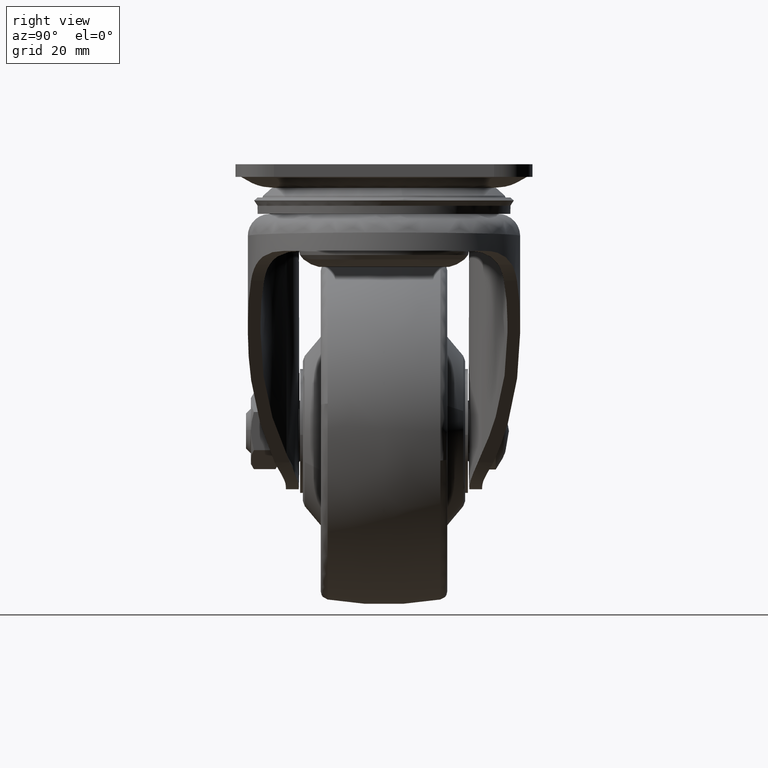
[diagram: clean part render]
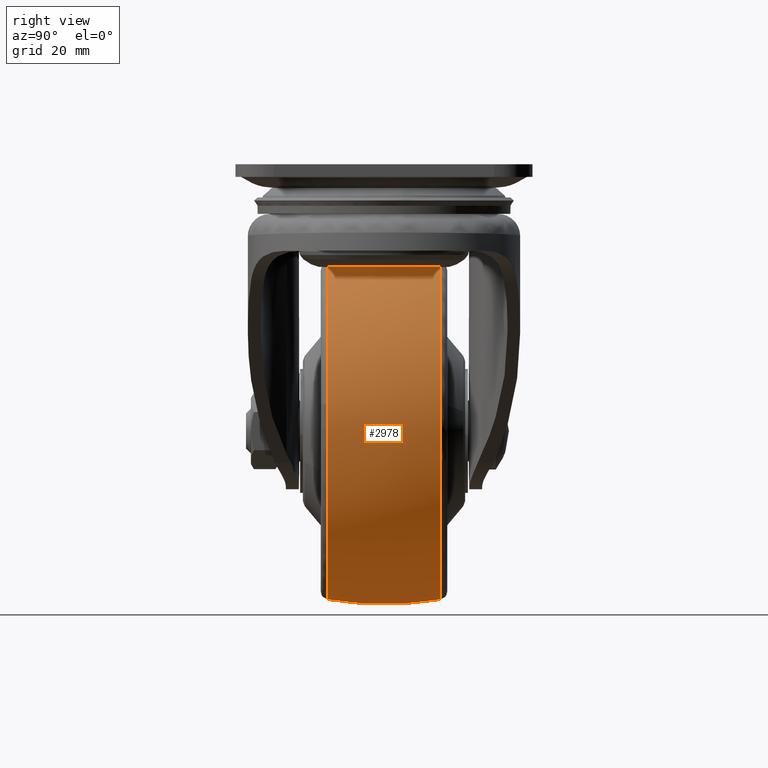
[diagram: same view with one face highlighted and labeled with its STEP entity id]
A machine part, right view. The second image highlights one B-rep face of the part: STEP entity #2978.
In plain terms, the highlighted face is a freeform B-spline surface patch.
Its self-contained STEP definition (entity closure, byte-faithful):
#2765=CARTESIAN_POINT('',(-25.0,10.256389704148299,-17.883029801819180));
#2766=VERTEX_POINT('',#2765);
#2780=CARTESIAN_POINT('',(5.144294150623415,10.256389930513580,-53.858579072631187));
#2781=VERTEX_POINT('',#2780);
#2782=CARTESIAN_POINT('',(5.144294150623415,10.256389930513581,-53.858579072631180));
#2783=CARTESIAN_POINT('',(5.616886005786750,10.256389923092099,-51.200088046195859));
#2784=CARTESIAN_POINT('',(5.616885943477549,10.256389913899920,-48.499918105427113));
#2785=CARTESIAN_POINT('',(5.616885236961333,10.256389809670946,-17.883029907056759));
#2786=CARTESIAN_POINT('',(-25.0,10.256389704148299,-17.883029801819180));
#2794=(BOUNDED_CURVE()B_SPLINE_CURVE(2,(#2782,#2783,#2784,#2785,#2786),.UNSPECIFIED.,.F.,.U.)B_SPLINE_CURVE_WITH_KNOTS((3,2,3),(0.219918255740382,0.250000000000000,0.500000000000000),.UNSPECIFIED.)CURVE()GEOMETRIC_REPRESENTATION_ITEM()RATIONAL_B_SPLINE_CURVE((0.937995445392300,0.964757044385109,1.0,0.707106781186548,1.0))REPRESENTATION_ITEM(''));
#2795=EDGE_CURVE('',#2781,#2766,#2794,.T.);
#2844=CARTESIAN_POINT('',(-25.0,10.256389660735310,-79.116805947369414));
#2845=VERTEX_POINT('',#2844);
#2846=CARTESIAN_POINT('',(-25.0,10.256389660735310,-79.116805947369414));
#2847=CARTESIAN_POINT('',(0.654214802774067,10.256389786670750,-79.116806072964636));
#2848=CARTESIAN_POINT('',(5.144294150623415,10.256389930513581,-53.858579072631180));
#2856=(BOUNDED_CURVE()B_SPLINE_CURVE(2,(#2846,#2847,#2848),.UNSPECIFIED.,.F.,.U.)B_SPLINE_CURVE_WITH_KNOTS((3,3),(0.0,0.219918255740382),.UNSPECIFIED.)CURVE()GEOMETRIC_REPRESENTATION_ITEM()RATIONAL_B_SPLINE_CURVE((1.0,0.742349736801438,0.937995445392300))REPRESENTATION_ITEM(''));
#2857=EDGE_CURVE('',#2845,#2781,#2856,.T.);
#2879=CARTESIAN_POINT('',(-25.850674367201432,-11.289922445329495,-78.928159541543096));
#2880=CARTESIAN_POINT('',(-25.880637237293534,-5.695832528417122,-79.999918000000008));
#2881=CARTESIAN_POINT('',(-25.880637237293545,3.673804E-015,-79.999918000000022));
#2882=CARTESIAN_POINT('',(-25.880637237293538,5.695822881211689,-79.999918000000008));
#2883=CARTESIAN_POINT('',(-25.850674467792896,11.289903664813302,-78.928163139654700));
#2884=CARTESIAN_POINT('',(-25.427814240870884,-11.289922445329500,-78.928159541543081));
#2885=CARTESIAN_POINT('',(-25.442882924043907,-5.695832528417121,-79.999918000000022));
#2886=CARTESIAN_POINT('',(-25.442882924043918,3.673804E-015,-79.999918000000022));
#2887=CARTESIAN_POINT('',(-25.442882924043907,5.695822881211689,-79.999918000000022));
#2888=CARTESIAN_POINT('',(-25.427814291459537,11.289903664813297,-78.928163139654686));
#2889=CARTESIAN_POINT('',(5.428241541543093,-11.289922445329495,-78.928159541543124));
#2890=CARTESIAN_POINT('',(6.499999999999999,-5.695832528417119,-79.999918000000008));
#2891=CARTESIAN_POINT('',(6.499999999999996,3.673804E-015,-79.999918000000008));
#2892=CARTESIAN_POINT('',(6.499999999999997,5.695822881211691,-79.999918000000008));
#2893=CARTESIAN_POINT('',(5.428245139654678,11.289903664813302,-78.928163139654686));
#2894=CARTESIAN_POINT('',(5.428241541543094,-11.289922445329495,-48.499918000000001));
#2895=CARTESIAN_POINT('',(6.500000000000000,-5.695832528417121,-48.499917999999994));
#2896=CARTESIAN_POINT('',(6.499999999999999,3.673804E-015,-48.499918000000001));
#2897=CARTESIAN_POINT('',(6.499999999999999,5.695822881211689,-48.499917999999987));
#2898=CARTESIAN_POINT('',(5.428245139654679,11.289903664813300,-48.499917999999994));
#2899=CARTESIAN_POINT('',(5.428241541543093,-11.289922445329495,-18.071676458456910));
#2900=CARTESIAN_POINT('',(6.499999999999999,-5.695832528417119,-16.999918000000001));
#2901=CARTESIAN_POINT('',(6.499999999999996,3.673804E-015,-16.999918000000012));
#2902=CARTESIAN_POINT('',(6.499999999999997,5.695822881211691,-16.999918000000005));
#2903=CARTESIAN_POINT('',(5.428245139654678,11.289903664813302,-18.071672860345330));
#2904=CARTESIAN_POINT('',(-25.427814240870887,-11.289922445329500,-18.071676458456913));
#2905=CARTESIAN_POINT('',(-25.442882924043907,-5.695832528417121,-16.999918000000001));
#2906=CARTESIAN_POINT('',(-25.442882924043911,3.673804E-015,-16.999918000000005));
#2907=CARTESIAN_POINT('',(-25.442882924043907,5.695822881211689,-16.999918000000005));
#2908=CARTESIAN_POINT('',(-25.427814291459526,11.289903664813297,-18.071672860345323));
#2909=CARTESIAN_POINT('',(-25.850674367201425,-11.289922445329495,-18.071676458456906));
#2910=CARTESIAN_POINT('',(-25.880637237293534,-5.695832528417121,-16.999918000000001));
#2911=CARTESIAN_POINT('',(-25.880637237293534,3.673804E-015,-16.999918000000001));
#2912=CARTESIAN_POINT('',(-25.880637237293531,5.695822881211689,-16.999918000000005));
#2913=CARTESIAN_POINT('',(-25.850674467792885,11.289903664813291,-18.071672860345323));
#2921=(BOUNDED_SURFACE()B_SPLINE_SURFACE(2,2,((#2879,#2884,#2889,#2894,#2899,#2904,#2909),(#2880,#2885,#2890,#2895,#2900,#2905,#2910),(#2881,#2886,#2891,#2896,#2901,#2906,#2911),(#2882,#2887,#2892,#2897,#2902,#2907,#2912),(#2883,#2888,#2893,#2898,#2903,#2908,#2913)),.UNSPECIFIED.,.F.,.F.,.U.)B_SPLINE_SURFACE_WITH_KNOTS((3,2,3),(3,1,2,1,3),(0.0,11.585338438097880,23.170657754108628),(0.0,1.043818177180205,53.234727036190201,105.425635895200200,106.469454072380400),.UNSPECIFIED.)GEOMETRIC_REPRESENTATION_ITEM()RATIONAL_B_SPLINE_SURFACE(((0.969436165217128,0.963823100780249,0.677556814499405,0.958210036343370,0.677556814499405,0.963823100780249,0.969436165217128),(0.985917862940869,0.980209368980447,0.689076176998883,0.974500875020024,0.689076176998883,0.980209368980447,0.985917862940869),(1.011715728752538,1.005857864376269,0.707106781186548,1.0,0.707106781186548,1.005857864376269,1.011715728752538),(0.985917905521329,0.980209411314364,0.689076206759152,0.974500917107399,0.689076206759152,0.980209411314364,0.985917905521329),(0.969436219624621,0.963823154872721,0.677556852525805,0.958210090120820,0.677556852525805,0.963823154872720,0.969436219624621)))REPRESENTATION_ITEM('')SURFACE());
#2922=CARTESIAN_POINT('',(-25.0,-10.256400634524869,-79.116804043491186));
#2923=VERTEX_POINT('',#2922);
#2924=CARTESIAN_POINT('',(-25.0,-10.256400634524869,-79.116804043491186));
#2925=CARTESIAN_POINT('',(-25.000000000000021,-8.352281629408825,-79.447175090724087));
#2926=CARTESIAN_POINT('',(-24.999999999999972,-4.032078768665750,-79.983332602247714));
#2927=CARTESIAN_POINT('',(-25.000000000000039,2.851047355745442,-80.084959107287759));
#2928=CARTESIAN_POINT('',(-24.999999999999961,7.770457044204468,-79.548181818565595));
#2929=CARTESIAN_POINT('',(-25.0,10.256389660735310,-79.116805947369414));
#2930=B_SPLINE_CURVE_WITH_KNOTS('',3,(#2924,#2925,#2926,#2927,#2928,#2929),.UNSPECIFIED.,.F.,.U.,(4,1,1,4),(-5.658350E-009,5.797703855966180,13.044790982447280,20.614032234818410),.UNSPECIFIED.);
#2931=EDGE_CURVE('',#2923,#2845,#2930,.T.);
#2932=ORIENTED_EDGE('',*,*,#2931,.T.);
#2933=ORIENTED_EDGE('',*,*,#2857,.T.);
#2934=ORIENTED_EDGE('',*,*,#2795,.T.);
#2935=CARTESIAN_POINT('',(-25.0,-10.256405444556361,-17.883032920190089));
#2936=VERTEX_POINT('',#2935);
#2937=CARTESIAN_POINT('',(-25.0,-10.256405444556361,-17.883032920190089));
#2938=CARTESIAN_POINT('',(-24.999999999999961,-7.982033916711305,-17.488375716302411));
#2939=CARTESIAN_POINT('',(-25.000000000000089,-4.135632850892935,-17.047808321803970));
#2940=CARTESIAN_POINT('',(-24.999999999999918,2.739874969644135,-16.927802341697632));
#2941=CARTESIAN_POINT('',(-25.000000000000050,7.294430169648814,-17.368947319987619));
#2942=CARTESIAN_POINT('',(-25.0,10.256389704148299,-17.883029801819180));
#2943=B_SPLINE_CURVE_WITH_KNOTS('',3,(#2937,#2938,#2939,#2940,#2941,#2942),.UNSPECIFIED.,.F.,.U.,(4,1,1,4),(-5.659473E-009,6.925067732029332,11.595352683871059,20.614037160338839),.UNSPECIFIED.);
#2944=EDGE_CURVE('',#2936,#2766,#2943,.T.);
#2945=ORIENTED_EDGE('',*,*,#2944,.F.);
#2946=CARTESIAN_POINT('',(5.209249759407442,-10.256403533957419,-43.520474670141333));
#2947=VERTEX_POINT('',#2946);
#2948=CARTESIAN_POINT('',(5.209249759407442,-10.256403533957421,-43.520474670141326));
#2949=CARTESIAN_POINT('',(0.983385199148646,-10.256405496192279,-17.883032871879156));
#2950=CARTESIAN_POINT('',(-25.0,-10.256405444556361,-17.883032920190089));
#2958=(BOUNDED_CURVE()B_SPLINE_CURVE(2,(#2948,#2949,#2950),.UNSPECIFIED.,.F.,.U.)B_SPLINE_CURVE_WITH_KNOTS((3,3),(0.277993892524415,0.500000000000000),.UNSPECIFIED.)CURVE()GEOMETRIC_REPRESENTATION_ITEM()RATIONAL_B_SPLINE_CURVE((0.941751129516427,0.739903666340923,1.0))REPRESENTATION_ITEM(''));
#2959=EDGE_CURVE('',#2947,#2936,#2958,.T.);
#2960=ORIENTED_EDGE('',*,*,#2959,.F.);
#2961=CARTESIAN_POINT('',(-25.0,-10.256400634524869,-79.116804043491186));
#2962=CARTESIAN_POINT('',(5.616884364860500,-10.256400678346312,-79.116804002491548));
#2963=CARTESIAN_POINT('',(5.616884657952975,-10.256403134997980,-48.499918392530041));
#2964=CARTESIAN_POINT('',(5.616884681946567,-10.256403336108217,-45.993511307558371));
#2965=CARTESIAN_POINT('',(5.209249759407442,-10.256403533957421,-43.520474670141326));
#2973=(BOUNDED_CURVE()B_SPLINE_CURVE(2,(#2961,#2962,#2963,#2964,#2965),.UNSPECIFIED.,.F.,.U.)B_SPLINE_CURVE_WITH_KNOTS((3,2,3),(0.0,0.250000000000000,0.277993892524415),.UNSPECIFIED.)CURVE()GEOMETRIC_REPRESENTATION_ITEM()RATIONAL_B_SPLINE_CURVE((1.0,0.707106781186548,1.0,0.967203114845625,0.941751129516427))REPRESENTATION_ITEM(''));
#2974=EDGE_CURVE('',#2923,#2947,#2973,.T.);
#2975=ORIENTED_EDGE('',*,*,#2974,.F.);
#2976=EDGE_LOOP('',(#2932,#2933,#2934,#2945,#2960,#2975));
#2977=FACE_OUTER_BOUND('',#2976,.T.);
#2978=ADVANCED_FACE('',(#2977),#2921,.T.);